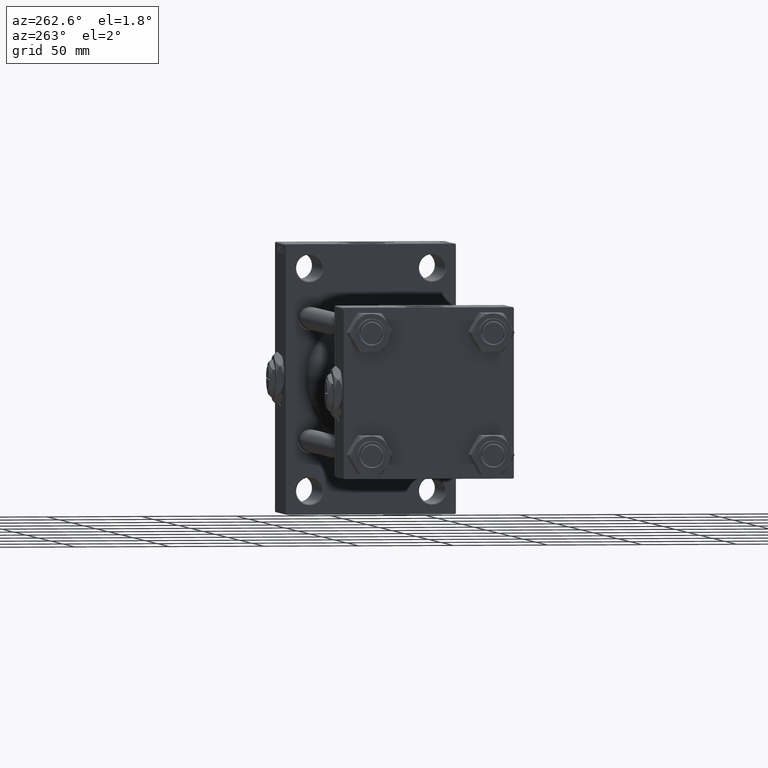
[diagram: clean part render]
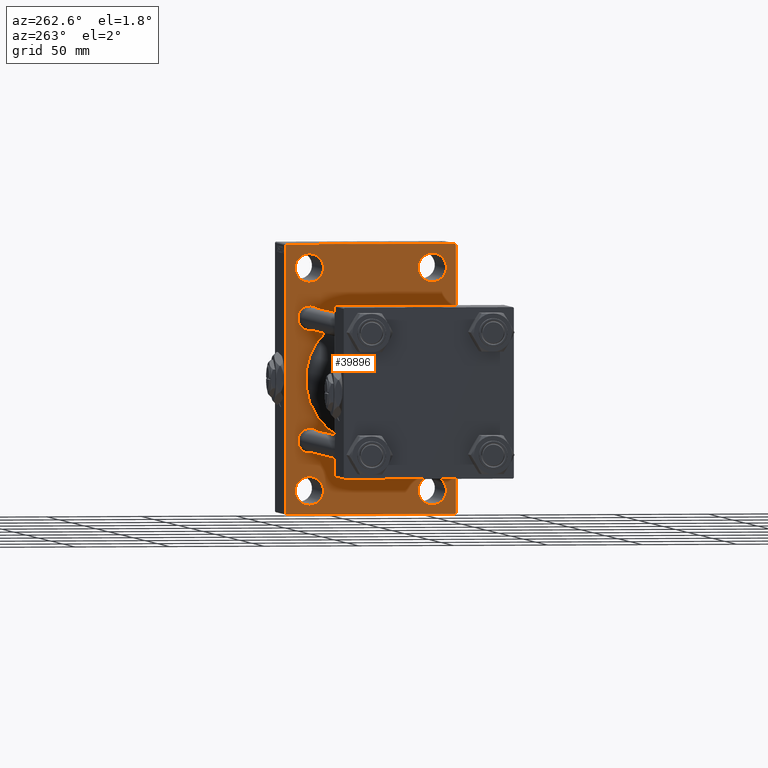
[diagram: same view with one face highlighted and labeled with its STEP entity id]
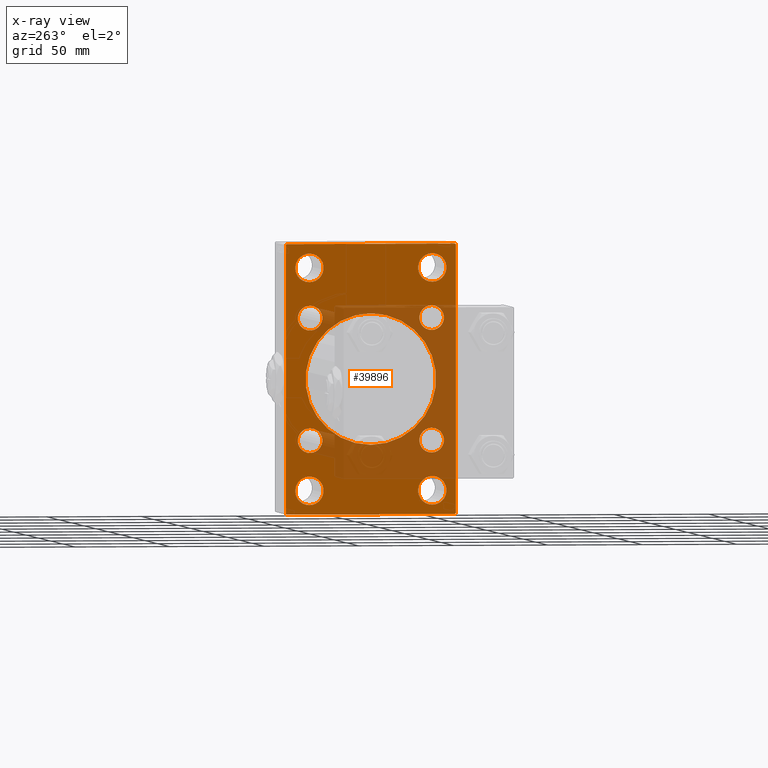
[diagram: x-ray of the same camera — body ghosted, the highlighted face saturated]
A machine part, auxiliary view. The second image highlights one B-rep face of the part: STEP entity #39896.
The next image is the same camera in x-ray: the body ghosted, the highlighted face saturated — about 34% of this face is hidden behind the body in this view.
In plain terms, the highlighted planar face has unit normal (-1, 0, 0).
Its self-contained STEP definition (entity closure, byte-faithful):
#228 = CARTESIAN_POINT ( 'NONE',  ( 236.0000000000000284, 1.622946243093158675E-15, -34.50000000000000000 ) ) ;
#708 = FACE_BOUND ( 'NONE', #43184, .T. ) ;
#717 = EDGE_CURVE ( 'NONE', #26066, #33105, #47888, .T. ) ;
#1142 = EDGE_LOOP ( 'NONE', ( #9342, #34945 ) ) ;
#1202 = FACE_BOUND ( 'NONE', #27180, .T. ) ;
#1470 = AXIS2_PLACEMENT_3D ( 'NONE', #38270, #41760, #4141 ) ;
#1881 = CARTESIAN_POINT ( 'NONE',  ( 236.0000000000000284, -32.14999999999997726, -32.15000000000001279 ) ) ;
#1934 = VERTEX_POINT ( 'NONE', #44902 ) ;
#2066 = ORIENTED_EDGE ( 'NONE', *, *, #32970, .T. ) ;
#2100 = EDGE_CURVE ( 'NONE', #9267, #6072, #34360, .T. ) ;
#2504 = CARTESIAN_POINT ( 'NONE',  ( 236.0000000000000284, 44.50000000000002132, 71.00000000000000000 ) ) ;
#2518 = EDGE_CURVE ( 'NONE', #45179, #44752, #49253, .T. ) ;
#2617 = EDGE_CURVE ( 'NONE', #38380, #31957, #17652, .T. ) ;
#2718 = DIRECTION ( 'NONE',  ( 1.000000000000000000, 0.000000000000000000, 0.000000000000000000 ) ) ;
#2792 = CARTESIAN_POINT ( 'NONE',  ( 236.0000000000000284, 32.14999999999999147, -32.15000000000000568 ) ) ;
#3105 = VERTEX_POINT ( 'NONE', #43819 ) ;
#3120 = DIRECTION ( 'NONE',  ( 1.000000000000000000, -0.000000000000000000, 0.000000000000000000 ) ) ;
#3203 = CARTESIAN_POINT ( 'NONE',  ( 236.0000000000000284, -2.602085213965210642E-15, 0.000000000000000000 ) ) ;
#3459 = DIRECTION ( 'NONE',  ( 1.000000000000000000, -0.000000000000000000, 0.000000000000000000 ) ) ;
#3662 = DIRECTION ( 'NONE',  ( 0.000000000000000000, -1.000000000000000000, -1.541976423090495387E-16 ) ) ;
#4141 = DIRECTION ( 'NONE',  ( 0.000000000000000000, 0.000000000000000000, 1.000000000000000000 ) ) ;
#4253 = EDGE_CURVE ( 'NONE', #26621, #25473, #25813, .T. ) ;
#4303 = ORIENTED_EDGE ( 'NONE', *, *, #18794, .T. ) ;
#4376 = CARTESIAN_POINT ( 'NONE',  ( 236.0000000000000284, 32.50000000000000711, -66.00000000000002842 ) ) ;
#4430 = FACE_BOUND ( 'NONE', #45620, .T. ) ;
#4444 = CARTESIAN_POINT ( 'NONE',  ( 236.0000000000000284, 32.50000000000000711, 66.00000000000004263 ) ) ;
#4542 = AXIS2_PLACEMENT_3D ( 'NONE', #8781, #8534, #16517 ) ;
#4708 = EDGE_CURVE ( 'NONE', #25473, #22287, #21288, .T. ) ;
#4719 = CIRCLE ( 'NONE', #18242, 7.500000000000034639 ) ;
#4924 = FACE_BOUND ( 'NONE', #27971, .T. ) ;
#5342 = CARTESIAN_POINT ( 'NONE',  ( 236.0000000000000284, -32.50000000000000000, -50.99999999999995026 ) ) ;
#5523 = EDGE_CURVE ( 'NONE', #45341, #24098, #10601, .T. ) ;
#5601 = ORIENTED_EDGE ( 'NONE', *, *, #2518, .F. ) ;
#5864 = DIRECTION ( 'NONE',  ( 1.000000000000000000, -0.000000000000000000, 0.000000000000000000 ) ) ;
#6072 = VERTEX_POINT ( 'NONE', #5342 ) ;
#6140 = VERTEX_POINT ( 'NONE', #44209 ) ;
#6670 = CIRCLE ( 'NONE', #34506, 7.500000000000034639 ) ;
#6687 = AXIS2_PLACEMENT_3D ( 'NONE', #18665, #3459, #37839 ) ;
#6951 = DIRECTION ( 'NONE',  ( 0.000000000000000000, 0.000000000000000000, -1.000000000000000000 ) ) ;
#7297 = AXIS2_PLACEMENT_3D ( 'NONE', #1881, #42747, #46976 ) ;
#7484 = EDGE_CURVE ( 'NONE', #34624, #6140, #37734, .T. ) ;
#7544 = EDGE_CURVE ( 'NONE', #6072, #9267, #32162, .T. ) ;
#8119 = ORIENTED_EDGE ( 'NONE', *, *, #7484, .T. ) ;
#8169 = FACE_BOUND ( 'NONE', #1142, .T. ) ;
#8190 = VECTOR ( 'NONE', #39717, 1000.000000000000000 ) ;
#8534 = DIRECTION ( 'NONE',  ( 1.000000000000000000, -0.000000000000000000, 0.000000000000000000 ) ) ;
#8652 = DIRECTION ( 'NONE',  ( -1.000000000000000000, 0.000000000000000000, -0.000000000000000000 ) ) ;
#8781 = CARTESIAN_POINT ( 'NONE',  ( 236.0000000000000284, 32.50000000000000711, -58.50000000000000000 ) ) ;
#8839 = CARTESIAN_POINT ( 'NONE',  ( 236.0000000000000284, -32.50000000000000000, 66.00000000000004263 ) ) ;
#8902 = DIRECTION ( 'NONE',  ( -0.000000000000000000, 0.000000000000000000, 1.000000000000000000 ) ) ;
#9085 = AXIS2_PLACEMENT_3D ( 'NONE', #31086, #8652, #8902 ) ;
#9267 = VERTEX_POINT ( 'NONE', #30562 ) ;
#9342 = ORIENTED_EDGE ( 'NONE', *, *, #44565, .T. ) ;
#9601 = ORIENTED_EDGE ( 'NONE', *, *, #12605, .T. ) ;
#9965 = DIRECTION ( 'NONE',  ( 1.000000000000000000, -0.000000000000000000, 0.000000000000000000 ) ) ;
#10141 = CARTESIAN_POINT ( 'NONE',  ( 236.0000000000000284, -32.14999999999997726, -25.65000000000000568 ) ) ;
#10601 = CIRCLE ( 'NONE', #16986, 7.500000000000034639 ) ;
#10694 = DIRECTION ( 'NONE',  ( 0.000000000000000000, 0.000000000000000000, 1.000000000000000000 ) ) ;
#10975 = CARTESIAN_POINT ( 'NONE',  ( 236.0000000000000284, -44.99999999999997158, 70.49999999999998579 ) ) ;
#11011 = CIRCLE ( 'NONE', #45200, 6.500000000000005329 ) ;
#11274 = AXIS2_PLACEMENT_3D ( 'NONE', #12971, #15997, #39632 ) ;
#11678 = CARTESIAN_POINT ( 'NONE',  ( 236.0000000000000284, 57.75000000000000000, 57.75000000000000000 ) ) ;
#11840 = ORIENTED_EDGE ( 'NONE', *, *, #4253, .T. ) ;
#11880 = CARTESIAN_POINT ( 'NONE',  ( 236.0000000000000284, 32.50000000000000711, -58.50000000000000000 ) ) ;
#11886 = LINE ( 'NONE', #27103, #21109 ) ;
#11939 = CARTESIAN_POINT ( 'NONE',  ( 236.0000000000000284, -2.602085213965210642E-15, 34.50000000000000000 ) ) ;
#12255 = AXIS2_PLACEMENT_3D ( 'NONE', #22560, #3120, #22319 ) ;
#12605 = EDGE_CURVE ( 'NONE', #22287, #33332, #11886, .T. ) ;
#12933 = ORIENTED_EDGE ( 'NONE', *, *, #45786, .F. ) ;
#12971 = CARTESIAN_POINT ( 'NONE',  ( 236.0000000000000284, -32.50000000000000000, -58.49999999999999289 ) ) ;
#13078 = DIRECTION ( 'NONE',  ( 0.000000000000000000, 0.000000000000000000, 1.000000000000000000 ) ) ;
#13329 = DIRECTION ( 'NONE',  ( 0.000000000000000000, 0.000000000000000000, 1.000000000000000000 ) ) ;
#13365 = CARTESIAN_POINT ( 'NONE',  ( 236.0000000000000284, 32.50000000000000711, 58.50000000000000711 ) ) ;
#13617 = VERTEX_POINT ( 'NONE', #8839 ) ;
#13814 = VECTOR ( 'NONE', #24641, 1000.000000000000000 ) ;
#13852 = CIRCLE ( 'NONE', #12255, 6.500000000000005329 ) ;
#13956 = CARTESIAN_POINT ( 'NONE',  ( 236.0000000000000284, -32.50000000000000000, 58.50000000000000711 ) ) ;
#14736 = ORIENTED_EDGE ( 'NONE', *, *, #46190, .T. ) ;
#14842 = DIRECTION ( 'NONE',  ( 0.000000000000000000, 0.000000000000000000, 1.000000000000000000 ) ) ;
#15338 = VERTEX_POINT ( 'NONE', #4376 ) ;
#15343 = CARTESIAN_POINT ( 'NONE',  ( 236.0000000000000284, -57.75000000000028422, 57.74999999999948841 ) ) ;
#15997 = DIRECTION ( 'NONE',  ( 1.000000000000000000, -0.000000000000000000, 0.000000000000000000 ) ) ;
#16145 = VECTOR ( 'NONE', #30621, 1000.000000000000114 ) ;
#16507 = EDGE_LOOP ( 'NONE', ( #4303, #8119 ) ) ;
#16517 = DIRECTION ( 'NONE',  ( 0.000000000000000000, 0.000000000000000000, 1.000000000000000000 ) ) ;
#16986 = AXIS2_PLACEMENT_3D ( 'NONE', #13365, #21353, #21116 ) ;
#17061 = VERTEX_POINT ( 'NONE', #18455 ) ;
#17206 = DIRECTION ( 'NONE',  ( 0.000000000000000000, 0.000000000000000000, -1.000000000000000000 ) ) ;
#17298 = CIRCLE ( 'NONE', #4542, 7.500000000000034639 ) ;
#17473 = AXIS2_PLACEMENT_3D ( 'NONE', #38580, #37583, #31097 ) ;
#17652 = CIRCLE ( 'NONE', #30384, 34.50000000000000000 ) ;
#17675 = EDGE_CURVE ( 'NONE', #15338, #46248, #17298, .T. ) ;
#18235 = ORIENTED_EDGE ( 'NONE', *, *, #17675, .T. ) ;
#18242 = AXIS2_PLACEMENT_3D ( 'NONE', #13956, #18432, #30380 ) ;
#18432 = DIRECTION ( 'NONE',  ( 1.000000000000000000, -0.000000000000000000, 0.000000000000000000 ) ) ;
#18455 = CARTESIAN_POINT ( 'NONE',  ( 236.0000000000000284, -32.14999999999997726, 25.65000000000000213 ) ) ;
#18665 = CARTESIAN_POINT ( 'NONE',  ( 236.0000000000000284, -32.50000000000000000, -58.49999999999999289 ) ) ;
#18794 = EDGE_CURVE ( 'NONE', #6140, #34624, #11011, .T. ) ;
#19329 = ORIENTED_EDGE ( 'NONE', *, *, #30064, .T. ) ;
#19685 = VERTEX_POINT ( 'NONE', #40238 ) ;
#19784 = CIRCLE ( 'NONE', #1470, 7.500000000000034639 ) ;
#20649 = CIRCLE ( 'NONE', #29378, 6.499999999999999112 ) ;
#21109 = VECTOR ( 'NONE', #31069, 1000.000000000000000 ) ;
#21116 = DIRECTION ( 'NONE',  ( 0.000000000000000000, 0.000000000000000000, 1.000000000000000000 ) ) ;
#21149 = EDGE_CURVE ( 'NONE', #13617, #3105, #4719, .T. ) ;
#21288 = LINE ( 'NONE', #24525, #8190 ) ;
#21353 = DIRECTION ( 'NONE',  ( 1.000000000000000000, -0.000000000000000000, 0.000000000000000000 ) ) ;
#21799 = ORIENTED_EDGE ( 'NONE', *, *, #23960, .T. ) ;
#22287 = VERTEX_POINT ( 'NONE', #38352 ) ;
#22302 = ORIENTED_EDGE ( 'NONE', *, *, #2100, .T. ) ;
#22319 = DIRECTION ( 'NONE',  ( 0.000000000000000000, 0.000000000000000000, 1.000000000000000000 ) ) ;
#22560 = CARTESIAN_POINT ( 'NONE',  ( 236.0000000000000284, -32.14999999999997726, 32.15000000000001279 ) ) ;
#22923 = CARTESIAN_POINT ( 'NONE',  ( 236.0000000000000284, -32.14999999999997726, 38.65000000000002700 ) ) ;
#23382 = FACE_OUTER_BOUND ( 'NONE', #48428, .T. ) ;
#23960 = EDGE_CURVE ( 'NONE', #24098, #45341, #33416, .T. ) ;
#24098 = VERTEX_POINT ( 'NONE', #4444 ) ;
#24151 = DIRECTION ( 'NONE',  ( 1.000000000000000000, -0.000000000000000000, 0.000000000000000000 ) ) ;
#24408 = CARTESIAN_POINT ( 'NONE',  ( 236.0000000000000284, 57.74999999999938893, -57.75000000000100187 ) ) ;
#24525 = CARTESIAN_POINT ( 'NONE',  ( 236.0000000000000284, 45.00000000000001421, -70.99999999999998579 ) ) ;
#24641 = DIRECTION ( 'NONE',  ( 0.000000000000000000, -4.886545002751570165E-17, -1.000000000000000000 ) ) ;
#24785 = VECTOR ( 'NONE', #34005, 1000.000000000000000 ) ;
#24787 = ORIENTED_EDGE ( 'NONE', *, *, #21149, .T. ) ;
#24824 = ORIENTED_EDGE ( 'NONE', *, *, #4708, .T. ) ;
#25473 = VERTEX_POINT ( 'NONE', #44672 ) ;
#25653 = DIRECTION ( 'NONE',  ( 0.000000000000000000, 0.000000000000000000, 1.000000000000000000 ) ) ;
#25813 = LINE ( 'NONE', #24408, #36813 ) ;
#26066 = VERTEX_POINT ( 'NONE', #40561 ) ;
#26190 = ORIENTED_EDGE ( 'NONE', *, *, #7544, .T. ) ;
#26223 = CIRCLE ( 'NONE', #17473, 6.500000000000005329 ) ;
#26308 = LINE ( 'NONE', #15343, #24785 ) ;
#26621 = VERTEX_POINT ( 'NONE', #41726 ) ;
#27103 = CARTESIAN_POINT ( 'NONE',  ( 236.0000000000000284, -57.74999999999937472, -57.75000000000096634 ) ) ;
#27180 = EDGE_LOOP ( 'NONE', ( #26190, #22302 ) ) ;
#27343 = DIRECTION ( 'NONE',  ( 0.000000000000000000, 0.000000000000000000, 1.000000000000000000 ) ) ;
#27892 = CARTESIAN_POINT ( 'NONE',  ( 236.0000000000000284, 32.14999999999999147, 32.15000000000000568 ) ) ;
#27971 = EDGE_LOOP ( 'NONE', ( #44754, #40267 ) ) ;
#28083 = VERTEX_POINT ( 'NONE', #10975 ) ;
#28417 = CARTESIAN_POINT ( 'NONE',  ( 236.0000000000000284, -44.99999999999997158, 70.99999999999998579 ) ) ;
#28583 = ORIENTED_EDGE ( 'NONE', *, *, #5523, .T. ) ;
#29378 = AXIS2_PLACEMENT_3D ( 'NONE', #44474, #5864, #13329 ) ;
#29387 = DIRECTION ( 'NONE',  ( 1.000000000000000000, -0.000000000000000000, 0.000000000000000000 ) ) ;
#29991 = EDGE_CURVE ( 'NONE', #28083, #44752, #26308, .T. ) ;
#30064 = EDGE_CURVE ( 'NONE', #17061, #35750, #44666, .T. ) ;
#30380 = DIRECTION ( 'NONE',  ( 0.000000000000000000, 0.000000000000000000, 1.000000000000000000 ) ) ;
#30384 = AXIS2_PLACEMENT_3D ( 'NONE', #35529, #35033, #38289 ) ;
#30562 = CARTESIAN_POINT ( 'NONE',  ( 236.0000000000000284, -32.50000000000000000, -66.00000000000002842 ) ) ;
#30621 = DIRECTION ( 'NONE',  ( 0.000000000000000000, 0.7071067811865474617, -0.7071067811865474617 ) ) ;
#30876 = DIRECTION ( 'NONE',  ( 0.000000000000000000, 0.000000000000000000, 1.000000000000000000 ) ) ;
#30885 = EDGE_CURVE ( 'NONE', #31957, #38380, #35946, .T. ) ;
#31069 = DIRECTION ( 'NONE',  ( 0.000000000000000000, -0.7071067811865573427, 0.7071067811865378028 ) ) ;
#31086 = CARTESIAN_POINT ( 'NONE',  ( 236.0000000000000284, 0.000000000000000000, 0.000000000000000000 ) ) ;
#31097 = DIRECTION ( 'NONE',  ( 0.000000000000000000, 0.000000000000000000, 1.000000000000000000 ) ) ;
#31177 = AXIS2_PLACEMENT_3D ( 'NONE', #3203, #2718, #6951 ) ;
#31328 = FACE_BOUND ( 'NONE', #16507, .T. ) ;
#31957 = VERTEX_POINT ( 'NONE', #228 ) ;
#32014 = DIRECTION ( 'NONE',  ( 1.000000000000000000, -0.000000000000000000, 0.000000000000000000 ) ) ;
#32162 = CIRCLE ( 'NONE', #6687, 7.500000000000041744 ) ;
#32844 = CARTESIAN_POINT ( 'NONE',  ( 236.0000000000000284, 45.00000000000002132, 71.00000000000000000 ) ) ;
#32970 = EDGE_CURVE ( 'NONE', #45179, #1934, #46063, .T. ) ;
#33105 = VERTEX_POINT ( 'NONE', #10141 ) ;
#33332 = VERTEX_POINT ( 'NONE', #46740 ) ;
#33350 = VECTOR ( 'NONE', #17206, 1000.000000000000000 ) ;
#33416 = CIRCLE ( 'NONE', #39793, 7.500000000000034639 ) ;
#34005 = DIRECTION ( 'NONE',  ( -0.000000000000000000, 0.7071067811865426878, 0.7071067811865524577 ) ) ;
#34023 = CARTESIAN_POINT ( 'NONE',  ( 236.0000000000000284, 32.50000000000000711, -50.99999999999996447 ) ) ;
#34166 = CIRCLE ( 'NONE', #49288, 6.499999999999999112 ) ;
#34360 = CIRCLE ( 'NONE', #11274, 7.500000000000041744 ) ;
#34506 = AXIS2_PLACEMENT_3D ( 'NONE', #11880, #46270, #27343 ) ;
#34624 = VERTEX_POINT ( 'NONE', #36378 ) ;
#34812 = PLANE ( 'NONE',  #9085 ) ;
#34945 = ORIENTED_EDGE ( 'NONE', *, *, #48670, .T. ) ;
#35033 = DIRECTION ( 'NONE',  ( 1.000000000000000000, 0.000000000000000000, 0.000000000000000000 ) ) ;
#35296 = ORIENTED_EDGE ( 'NONE', *, *, #30885, .T. ) ;
#35529 = CARTESIAN_POINT ( 'NONE',  ( 236.0000000000000284, -2.602085213965210642E-15, 0.000000000000000000 ) ) ;
#35750 = VERTEX_POINT ( 'NONE', #22923 ) ;
#35946 = CIRCLE ( 'NONE', #31177, 34.50000000000000000 ) ;
#36019 = EDGE_CURVE ( 'NONE', #46248, #15338, #6670, .T. ) ;
#36120 = LINE ( 'NONE', #28417, #33350 ) ;
#36248 = EDGE_CURVE ( 'NONE', #35750, #17061, #13852, .T. ) ;
#36363 = CARTESIAN_POINT ( 'NONE',  ( 236.0000000000000284, 32.14999999999999147, -32.15000000000000568 ) ) ;
#36378 = CARTESIAN_POINT ( 'NONE',  ( 236.0000000000000284, 32.14999999999999147, -38.65000000000001279 ) ) ;
#36813 = VECTOR ( 'NONE', #39350, 999.9999999999998863 ) ;
#36919 = AXIS2_PLACEMENT_3D ( 'NONE', #36363, #29387, #10694 ) ;
#37301 = CARTESIAN_POINT ( 'NONE',  ( 236.0000000000000284, 45.00000000000002132, 71.00000000000000000 ) ) ;
#37583 = DIRECTION ( 'NONE',  ( 1.000000000000000000, -0.000000000000000000, 0.000000000000000000 ) ) ;
#37734 = CIRCLE ( 'NONE', #36919, 6.500000000000005329 ) ;
#37839 = DIRECTION ( 'NONE',  ( 0.000000000000000000, 0.000000000000000000, 1.000000000000000000 ) ) ;
#38270 = CARTESIAN_POINT ( 'NONE',  ( 236.0000000000000284, -32.50000000000000000, 58.50000000000000711 ) ) ;
#38289 = DIRECTION ( 'NONE',  ( 0.000000000000000000, 0.000000000000000000, -1.000000000000000000 ) ) ;
#38352 = CARTESIAN_POINT ( 'NONE',  ( 236.0000000000000284, -44.49999999999994316, -71.00000000000000000 ) ) ;
#38380 = VERTEX_POINT ( 'NONE', #11939 ) ;
#38580 = CARTESIAN_POINT ( 'NONE',  ( 236.0000000000000284, -32.14999999999997726, -32.15000000000001279 ) ) ;
#38804 = FACE_BOUND ( 'NONE', #44860, .T. ) ;
#39350 = DIRECTION ( 'NONE',  ( -0.000000000000000000, -0.7071067811865574537, -0.7071067811865376918 ) ) ;
#39401 = EDGE_CURVE ( 'NONE', #1934, #26621, #47807, .T. ) ;
#39632 = DIRECTION ( 'NONE',  ( 0.000000000000000000, 0.000000000000000000, 1.000000000000000000 ) ) ;
#39658 = ORIENTED_EDGE ( 'NONE', *, *, #36019, .T. ) ;
#39717 = DIRECTION ( 'NONE',  ( 0.000000000000000000, -1.000000000000000000, -1.541976423090495633E-16 ) ) ;
#39793 = AXIS2_PLACEMENT_3D ( 'NONE', #43430, #9965, #25653 ) ;
#39896 = ADVANCED_FACE ( 'NONE', ( #38804, #1202, #708, #42794, #46536, #8169, #31328, #4924, #4430, #23382 ), #34812, .T. ) ;
#40238 = CARTESIAN_POINT ( 'NONE',  ( 236.0000000000000284, 32.14999999999999147, 25.65000000000000213 ) ) ;
#40267 = ORIENTED_EDGE ( 'NONE', *, *, #717, .T. ) ;
#40409 = VERTEX_POINT ( 'NONE', #47356 ) ;
#40430 = CARTESIAN_POINT ( 'NONE',  ( 236.0000000000000284, -44.49999999999995026, 70.99999999999998579 ) ) ;
#40561 = CARTESIAN_POINT ( 'NONE',  ( 236.0000000000000284, -32.14999999999997726, -38.65000000000001990 ) ) ;
#40724 = EDGE_LOOP ( 'NONE', ( #46239, #19329 ) ) ;
#40738 = VECTOR ( 'NONE', #3662, 1000.000000000000000 ) ;
#41480 = AXIS2_PLACEMENT_3D ( 'NONE', #47816, #48978, #14842 ) ;
#41726 = CARTESIAN_POINT ( 'NONE',  ( 236.0000000000000284, 45.00000000000001421, -70.50000000000001421 ) ) ;
#41744 = ORIENTED_EDGE ( 'NONE', *, *, #2617, .T. ) ;
#41760 = DIRECTION ( 'NONE',  ( 1.000000000000000000, -0.000000000000000000, 0.000000000000000000 ) ) ;
#41848 = EDGE_LOOP ( 'NONE', ( #21799, #28583 ) ) ;
#42090 = CARTESIAN_POINT ( 'NONE',  ( 236.0000000000000284, 32.50000000000000711, 50.99999999999997868 ) ) ;
#42747 = DIRECTION ( 'NONE',  ( 1.000000000000000000, -0.000000000000000000, 0.000000000000000000 ) ) ;
#42794 = FACE_BOUND ( 'NONE', #41848, .T. ) ;
#43184 = EDGE_LOOP ( 'NONE', ( #39658, #18235 ) ) ;
#43430 = CARTESIAN_POINT ( 'NONE',  ( 236.0000000000000284, 32.50000000000000711, 58.50000000000000711 ) ) ;
#43819 = CARTESIAN_POINT ( 'NONE',  ( 236.0000000000000284, -32.50000000000000000, 50.99999999999997868 ) ) ;
#44209 = CARTESIAN_POINT ( 'NONE',  ( 236.0000000000000284, 32.14999999999999147, -25.64999999999999858 ) ) ;
#44474 = CARTESIAN_POINT ( 'NONE',  ( 236.0000000000000284, 32.14999999999999147, 32.15000000000000568 ) ) ;
#44565 = EDGE_CURVE ( 'NONE', #40409, #19685, #20649, .T. ) ;
#44666 = CIRCLE ( 'NONE', #41480, 6.500000000000005329 ) ;
#44672 = CARTESIAN_POINT ( 'NONE',  ( 236.0000000000000284, 44.50000000000004263, -70.99999999999998579 ) ) ;
#44752 = VERTEX_POINT ( 'NONE', #40430 ) ;
#44754 = ORIENTED_EDGE ( 'NONE', *, *, #45932, .T. ) ;
#44860 = EDGE_LOOP ( 'NONE', ( #24787, #14736 ) ) ;
#44902 = CARTESIAN_POINT ( 'NONE',  ( 236.0000000000000284, 45.00000000000002132, 70.50000000000000000 ) ) ;
#45179 = VERTEX_POINT ( 'NONE', #2504 ) ;
#45200 = AXIS2_PLACEMENT_3D ( 'NONE', #2792, #32014, #13078 ) ;
#45341 = VERTEX_POINT ( 'NONE', #42090 ) ;
#45620 = EDGE_LOOP ( 'NONE', ( #41744, #35296 ) ) ;
#45786 = EDGE_CURVE ( 'NONE', #28083, #33332, #36120, .T. ) ;
#45932 = EDGE_CURVE ( 'NONE', #33105, #26066, #26223, .T. ) ;
#46063 = LINE ( 'NONE', #11678, #16145 ) ;
#46190 = EDGE_CURVE ( 'NONE', #3105, #13617, #19784, .T. ) ;
#46239 = ORIENTED_EDGE ( 'NONE', *, *, #36248, .T. ) ;
#46248 = VERTEX_POINT ( 'NONE', #34023 ) ;
#46270 = DIRECTION ( 'NONE',  ( 1.000000000000000000, -0.000000000000000000, 0.000000000000000000 ) ) ;
#46536 = FACE_BOUND ( 'NONE', #40724, .T. ) ;
#46740 = CARTESIAN_POINT ( 'NONE',  ( 236.0000000000000284, -44.99999999999997158, -70.50000000000000000 ) ) ;
#46909 = ORIENTED_EDGE ( 'NONE', *, *, #39401, .T. ) ;
#46976 = DIRECTION ( 'NONE',  ( 0.000000000000000000, 0.000000000000000000, 1.000000000000000000 ) ) ;
#47356 = CARTESIAN_POINT ( 'NONE',  ( 236.0000000000000284, 32.14999999999999147, 38.65000000000001279 ) ) ;
#47807 = LINE ( 'NONE', #32844, #13814 ) ;
#47816 = CARTESIAN_POINT ( 'NONE',  ( 236.0000000000000284, -32.14999999999997726, 32.15000000000001279 ) ) ;
#47888 = CIRCLE ( 'NONE', #7297, 6.500000000000005329 ) ;
#48428 = EDGE_LOOP ( 'NONE', ( #24824, #9601, #12933, #48924, #5601, #2066, #46909, #11840 ) ) ;
#48670 = EDGE_CURVE ( 'NONE', #19685, #40409, #34166, .T. ) ;
#48924 = ORIENTED_EDGE ( 'NONE', *, *, #29991, .T. ) ;
#48978 = DIRECTION ( 'NONE',  ( 1.000000000000000000, -0.000000000000000000, 0.000000000000000000 ) ) ;
#49253 = LINE ( 'NONE', #37301, #40738 ) ;
#49288 = AXIS2_PLACEMENT_3D ( 'NONE', #27892, #24151, #30876 ) ;